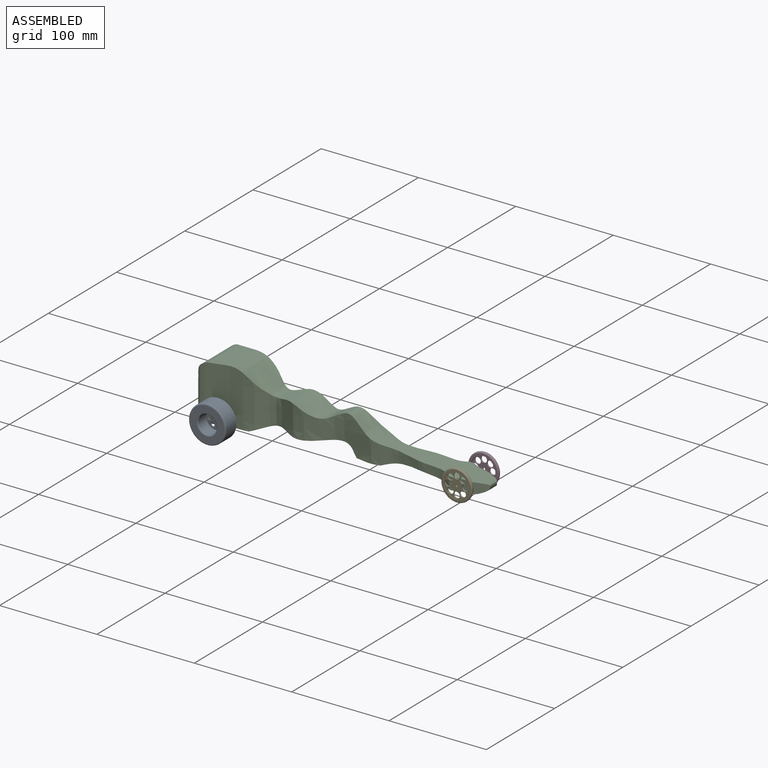
[diagram: assembled view]
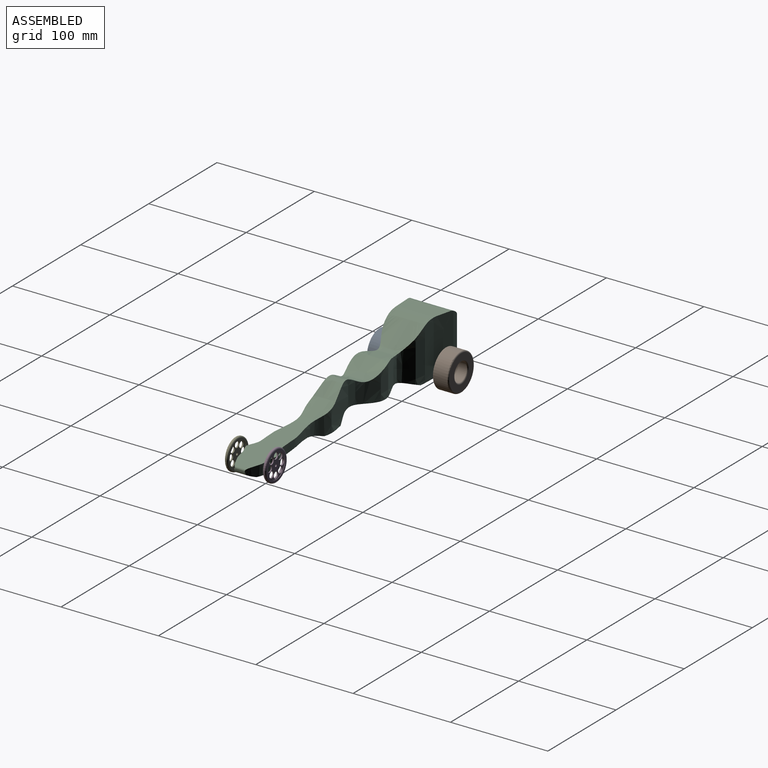
[diagram: assembled view, second angle]
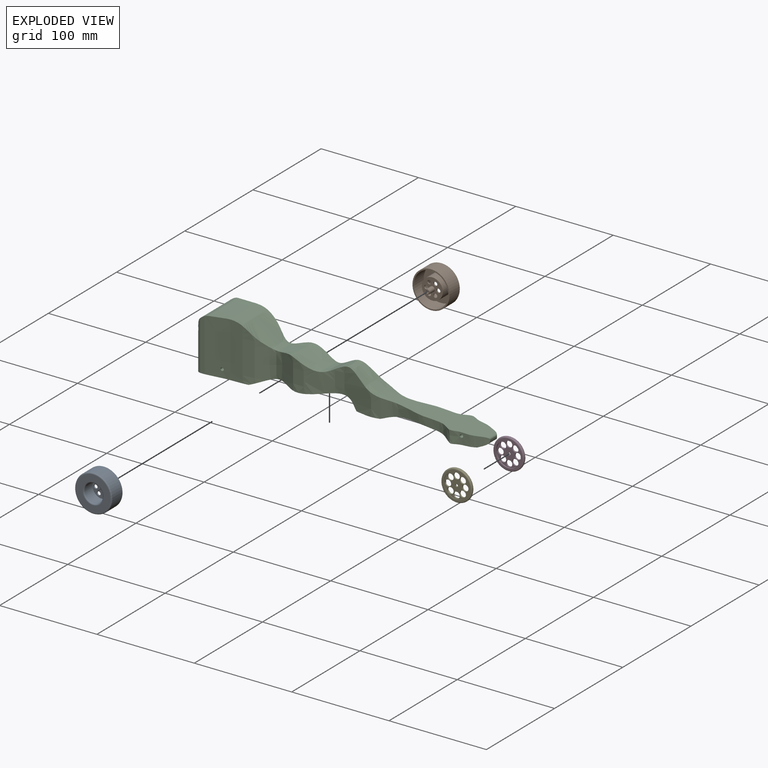
[diagram: exploded view]
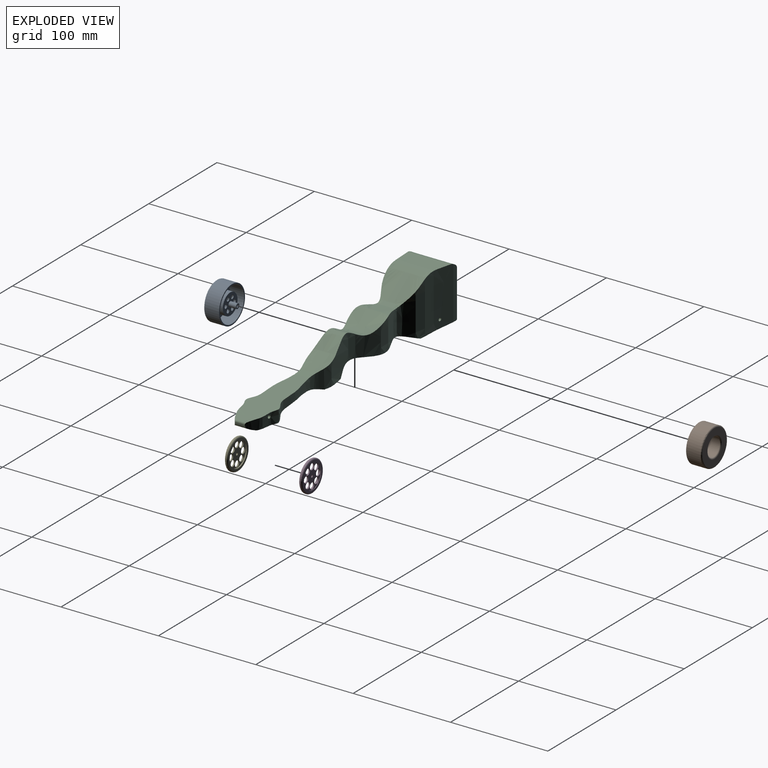
[diagram: exploded view, second angle]
ASSEMBLY  parts=5 mates=8
PART A: 20 faces, bbox 41.2x21.6x41.2 mm
  f0: cylinder r=19.05mm len=38.1mm, axis (0,1,0), area 1748.1mm2, adj f2,f19
  f1: plane 35.56x35.56mm, normal (0,-1,0), area 627.1mm2, adj f18,f19
  f2: plane 38.1x38.1mm, normal (0,1,0), area 146.9mm2, adj f0,f5
  f3: cylinder r=9.53mm len=19.05mm, axis (0,-1,0), area 684.1mm2, adj f4,f18
  f4: plane 19.05x19.05mm, normal (0,-1,0), area 211.6mm2, adj f3,f9,f10,f11,f12,f13,f14,f17
  f5: cylinder r=17.78mm len=35.56mm, axis (0,1,0), area 1631.6mm2, adj f2,f6
  f6: plane 35.56x35.56mm, normal (0,1,0), area 627.1mm2, adj f5,f7
  f7: cylinder r=10.79mm len=21.59mm, axis (0,-1,0), area 861.4mm2, adj f6,f8
  f8: plane 21.59x21.59mm, normal (0,1,0), area 277.4mm2, adj f7,f9,f10,f11,f12,f13,f14,f15
  f9: cylinder r=1.91mm len=3.81mm, axis (0,-1,0), area 15.2mm2, adj f4,f8
  f10: cylinder r=1.91mm len=3.81mm, axis (0,-1,0), area 15.2mm2, adj f4,f8
  f11: cylinder r=1.91mm len=3.81mm, axis (0,-1,0), area 15.2mm2, adj f4,f8
  f12: cylinder r=1.91mm len=3.81mm, axis (0,-1,0), area 15.2mm2, adj f4,f8
  f13: cylinder r=1.91mm len=3.81mm, axis (0,-1,0), area 15.2mm2, adj f4,f8
  f14: cylinder r=1.91mm len=3.81mm, axis (0,-1,0), area 15.2mm2, adj f4,f8
  f15: cylinder r=2.54mm len=7.62mm, axis (0,-1,0), area 121.6mm2, adj f8,f16
  f16: plane 5.08x5.08mm, normal (0,1,0), area 15.2mm2, adj f15,f17
  f17: cylinder r=1.27mm len=8.89mm, axis (0,1,0), area 70.9mm2, adj f4,f16
  f18: torus R=10.79mm, axis (0,-1,0), area 125.2mm2, adj f1,f3
  f19: torus R=17.78mm, axis (0,-1,0), area 233mm2, adj f0,f1
PART B: same geometry as A
PART C: 16 faces, bbox 290.2x45.1x56.3 mm
  f0: extruded ~290.13x56.23mm, area 9784.2mm2, adj f1,f2,f3,f4,f7,f8,f9,f12
  f1: plane 54.01x4.44mm, normal (0,-1,0), area 232mm2, adj f0,f6,f7,f8
  f2: plane 54.01x4.44mm, normal (0,1,0), area 232mm2, adj f0,f3,f6,f9
  f3: extruded ~51.09x22.23mm, area 435.8mm2, adj f0,f2,f6,f7
  f4: plane 33.76x22.87mm, normal (0,0,-1), area 611.8mm2, adj f0,f8,f9,f11
  f5: plane 25.25x24.02mm, normal (0,0,-1), area 554mm2, adj f8,f9,f10,f11
  f6: plane 51.91x45.08mm, normal (0,0,-1), area 2090.8mm2, adj f1,f2,f3,f7,f8,f9,f10
  f7: extruded ~51.09x22.23mm, area 435.8mm2, adj f0,f1,f3,f6
  f8: extruded ~281.19x56.26mm, area 7200.7mm2, adj f0,f1,f4,f5,f6,f10,f11,f14
  f9: extruded ~281.19x56.26mm, area 7200.7mm2, adj f0,f2,f4,f5,f6,f10,f11,f14
  f10: extruded ~104.62x36.93mm, area 2746.3mm2, adj f5,f6,f8,f9
  f11: extruded ~76.75x33.65mm, area 1623.9mm2, adj f4,f5,f8,f9
  f12: cylinder r=9.53mm len=56.47mm, axis (1,0,0), area 3379.5mm2, adj f0,f13
  f13: plane 19.05x19.05mm, normal (-1,0,0), area 285mm2, adj f12
  f14: cylinder r=1.59mm len=27.35mm, axis (0,-1,0), area 272.8mm2, adj f8,f9
  f15: cylinder r=1.59mm len=40.26mm, axis (0,-1,0), area 401.6mm2, adj f8,f9
PART D: 18 faces, bbox 34.4x3.2x34.4 mm
  f0: cylinder r=15.88mm len=31.75mm, axis (0,1,0), area 63.3mm2, adj f16,f17
  f1: plane 29.21x29.21mm, normal (0,-1,0), area 163.4mm2, adj f3,f17
  f2: plane 29.21x29.21mm, normal (0,1,0), area 163.4mm2, adj f5,f16
  f3: cylinder r=12.7mm len=25.4mm, axis (0,-1,0), area 40.5mm2, adj f1,f4
  f4: plane 25.4x25.4mm, normal (0,-1,0), area 248.3mm2, adj f3,f7,f8,f9,f10,f11,f12,f13
  f5: cylinder r=12.7mm len=25.4mm, axis (0,1,0), area 101.3mm2, adj f2,f6
  f6: plane 25.4x25.4mm, normal (0,1,0), area 248.3mm2, adj f5,f7,f8,f9,f10,f11,f12,f13
  f7: cylinder r=1.27mm len=2.54mm, axis (0,-1,0), area 11.1mm2, adj f4,f6
  f8: cylinder r=3.17mm len=6.35mm, axis (0,-1,0), area 27.9mm2, adj f4,f6
  f9: cylinder r=3.17mm len=6.35mm, axis (0,-1,0), area 27.9mm2, adj f4,f6
  f10: cylinder r=3.17mm len=6.35mm, axis (0,-1,0), area 27.9mm2, adj f4,f6
  f11: cylinder r=3.17mm len=6.35mm, axis (0,-1,0), area 27.9mm2, adj f4,f6
  f12: cylinder r=3.17mm len=6.35mm, axis (0,-1,0), area 27.9mm2, adj f4,f6
  f13: cylinder r=3.17mm len=6.35mm, axis (0,-1,0), area 27.9mm2, adj f4,f6
  f14: cylinder r=3.17mm len=6.35mm, axis (0,-1,0), area 27.9mm2, adj f4,f6
  f15: cylinder r=3.17mm len=6.35mm, axis (0,-1,0), area 27.9mm2, adj f4,f6
  f16: torus R=14.61mm, axis (0,-1,0), area 193.2mm2, adj f0,f2
  f17: torus R=14.61mm, axis (0,-1,0), area 193.2mm2, adj f0,f1
PART E: same geometry as D
PLACE A rot(axis=(0,1,0),90deg) t=(-134.03,-39.07,-14.88)mm
PLACE B rot(axis=(0.71,0,-0.71),180deg) t=(-134.03,29.39,-14.88)mm
PLACE C t=(-13.38,-4.84,8.61)mm fixed
PLACE D rot(axis=(0.71,0,0.71),180deg) t=(107.27,14.74,-14.88)mm
PLACE E t=(107.27,-24.42,-14.88)mm
MATE cylindrical E.f0 <-> C.f14  axis (0,1,0) through (107.27,-24.1,-14.88)mm
MATE planar E.f0 <-> C.f14  axis (0,1,0) through (107.27,-24.1,-14.88)mm
MATE planar C.f15 <-> A.f0  axis (0,-1,0) through (-134.03,-25.42,-14.88)mm
MATE cylindrical B.f0 <-> C.f15  axis (0,-1,0) through (-134.03,15.73,-14.88)mm
MATE cylindrical C.f14 <-> D.f0  axis (0,-1,0) through (107.27,9.34,-14.88)mm
MATE cylindrical C.f15 <-> A.f0  axis (0,-1,0) through (-134.03,-25.42,-14.88)mm
MATE planar B.f0 <-> C.f15  axis (0,-1,0) through (-134.03,15.73,-14.88)mm
MATE planar D.f0 <-> C.f14  axis (0,-1,0) through (107.27,14.42,-14.88)mm
